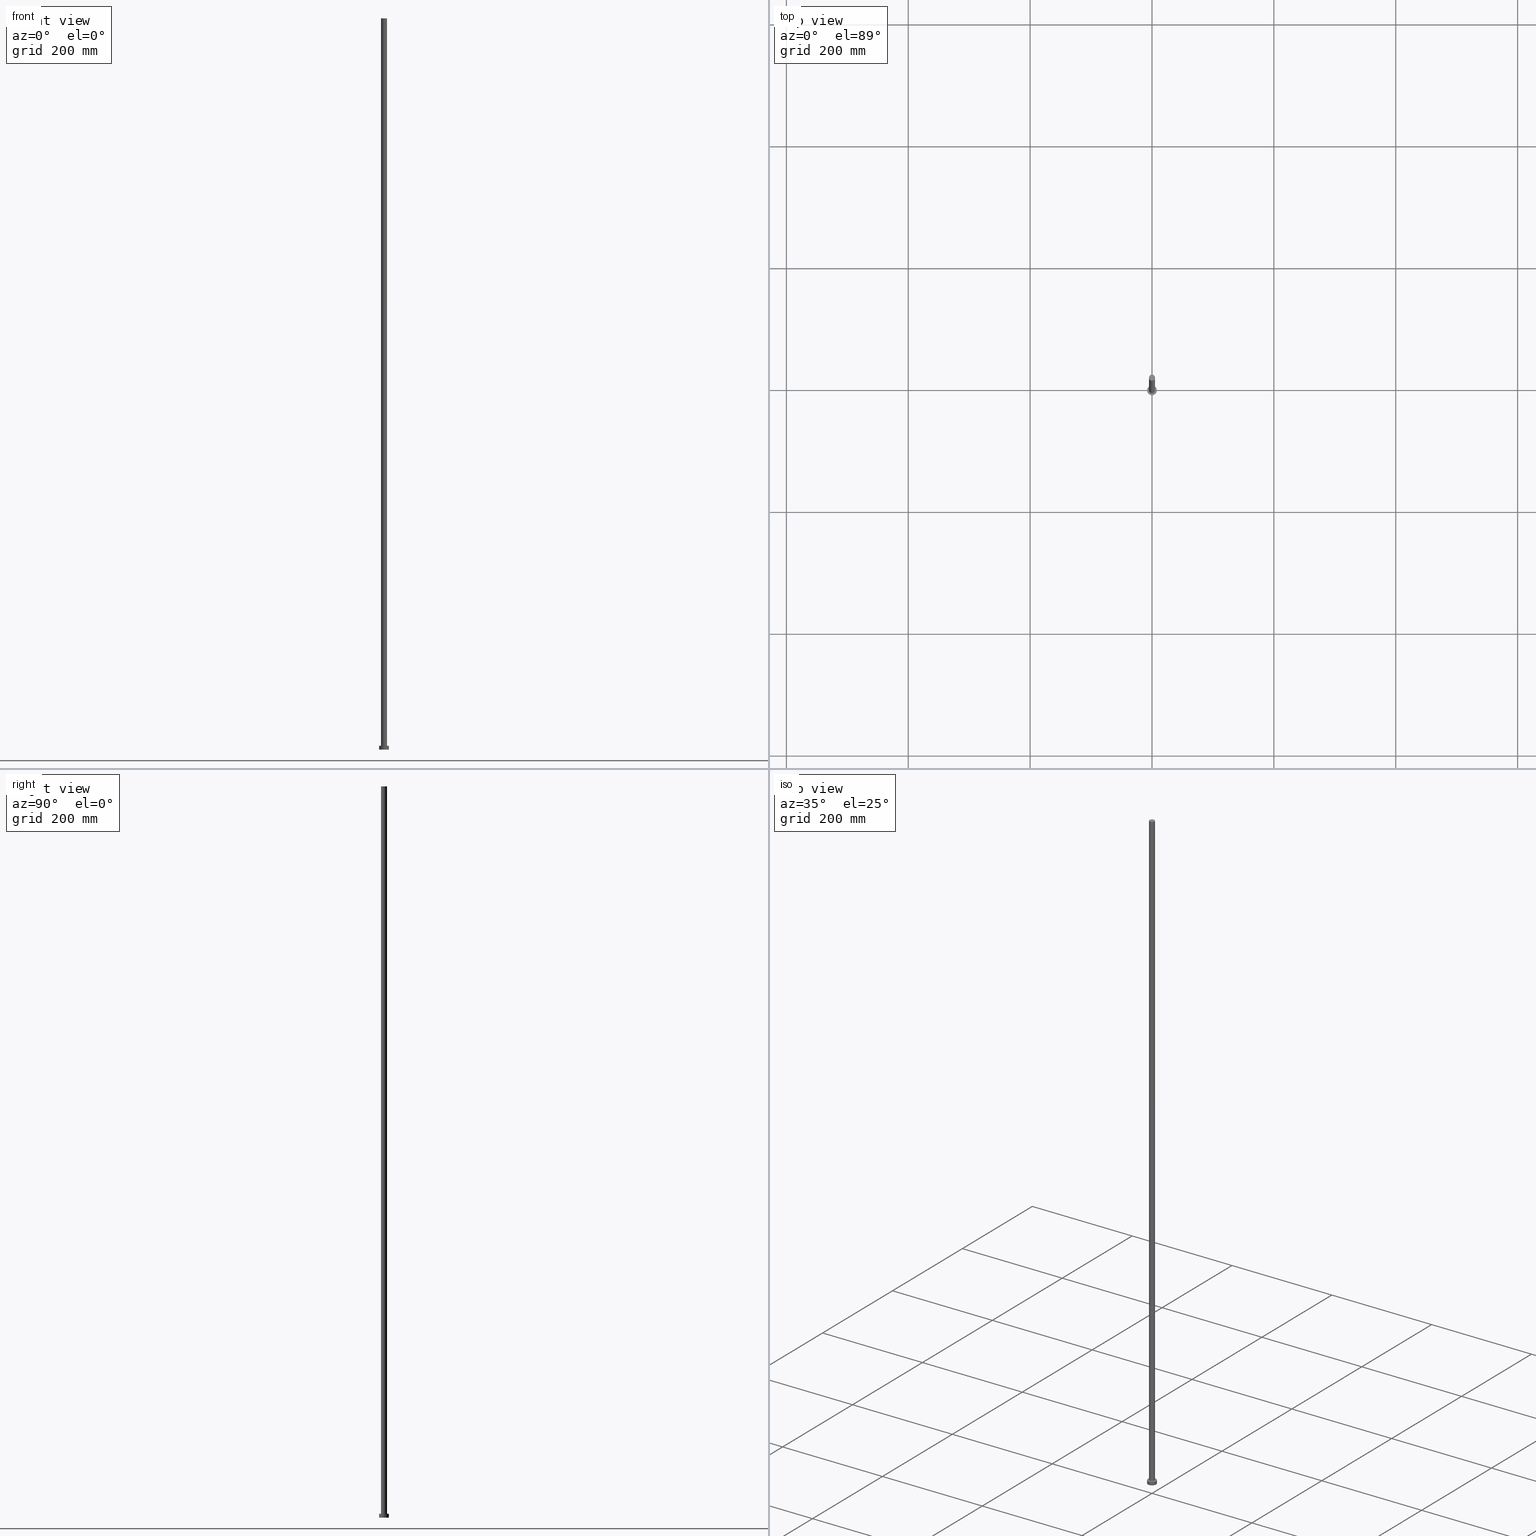
[diagram: canonical four-view strip — front | top / right | iso, engineering-drawing reading convention]
A machine part, canonical four-view strip (front | top / right | iso — engineering-drawing reading convention). The complete STEP part file that produces these views, byte-faithful:
ISO-10303-21;
HEADER;
FILE_DESCRIPTION (( 'STEP AP203' ),
    '1' );
FILE_NAME ('beea.STEP',
    '2023-02-13T13:08:01',
    ( '' ),
    ( '' ),
    'SwSTEP 2.0',
    'SolidWorks 2019',
    '' );
FILE_SCHEMA (( 'CONFIG_CONTROL_DESIGN' ));
ENDSEC;

DATA;
#1 = DIRECTION ( 'NONE',  ( 0.000000000000000000, 0.000000000000000000, 1.000000000000000000 ) ) ;
#2 = DIRECTION ( 'NONE',  ( 1.000000000000000000, 0.000000000000000000, 0.000000000000000000 ) ) ;
#3 = CARTESIAN_POINT ( 'NONE',  ( 0.000000000000000000, 0.000000000000000000, 1200.000000000000000 ) ) ;
#4 = CC_DESIGN_PERSON_AND_ORGANIZATION_ASSIGNMENT ( #246, #33, ( #229 ) ) ;
#5 = AXIS2_PLACEMENT_3D ( 'NONE', #235, #1, #142 ) ;
#6 = CARTESIAN_POINT ( 'NONE',  ( 0.000000000000000000, 0.000000000000000000, 6.500000000000000000 ) ) ;
#7 = CC_DESIGN_DATE_AND_TIME_ASSIGNMENT ( #19, #201, ( #149 ) ) ;
#8 = ADVANCED_BREP_SHAPE_REPRESENTATION ( 'beea', ( #44, #73 ), #86 ) ;
#9 = ORIENTED_EDGE ( 'NONE', *, *, #11, .T. ) ;
#10 = SECURITY_CLASSIFICATION ( '', '', #55 ) ;
#11 = EDGE_CURVE ( 'NONE', #115, #253, #250, .T. ) ;
#12 = ORIENTED_EDGE ( 'NONE', *, *, #223, .F. ) ;
#13 = AXIS2_PLACEMENT_3D ( 'NONE', #217, #254, #2 ) ;
#14 = PERSON_AND_ORGANIZATION ( #135, #141 ) ;
#15 = ORIENTED_EDGE ( 'NONE', *, *, #159, .T. ) ;
#16 = ORIENTED_EDGE ( 'NONE', *, *, #143, .T. ) ;
#17 = PRODUCT ( 'beea', 'beea', '', ( #196 ) ) ;
#18 = EDGE_LOOP ( 'NONE', ( #161, #207 ) ) ;
#19 = DATE_AND_TIME ( #100, #125 ) ;
#20 = PRODUCT_DEFINITION_SHAPE ( 'NONE', 'NONE',  #149 ) ;
#21 = DIRECTION ( 'NONE',  ( -0.000000000000000000, -0.000000000000000000, -1.000000000000000000 ) ) ;
#22 = DIRECTION ( 'NONE',  ( 1.000000000000000000, 0.000000000000000000, -0.000000000000000000 ) ) ;
#23 = CARTESIAN_POINT ( 'NONE',  ( 0.000000000000000000, 0.000000000000000000, 1200.000000000000000 ) ) ;
#24 = LINE ( 'NONE', #101, #191 ) ;
#25 = CYLINDRICAL_SURFACE ( 'NONE', #199, 5.000000000000000888 ) ;
#26 = AXIS2_PLACEMENT_3D ( 'NONE', #6, #178, #160 ) ;
#27 = CARTESIAN_POINT ( 'NONE',  ( 0.000000000000000000, 0.000000000000000000, 0.000000000000000000 ) ) ;
#28 = PERSON_AND_ORGANIZATION ( #135, #141 ) ;
#29 = PERSON_AND_ORGANIZATION_ROLE ( 'design_owner' ) ;
#30 = ADVANCED_FACE ( 'NONE', ( #134 ), #37, .T. ) ;
#31 = CC_DESIGN_APPROVAL ( #80, ( #229 ) ) ;
#32 = APPROVAL_STATUS ( 'not_yet_approved' ) ;
#33 = PERSON_AND_ORGANIZATION_ROLE ( 'design_supplier' ) ;
#34 = EDGE_LOOP ( 'NONE', ( #200, #163, #186, #202 ) ) ;
#35 = VERTEX_POINT ( 'NONE', #234 ) ;
#36 = ORIENTED_EDGE ( 'NONE', *, *, #11, .F. ) ;
#37 = PLANE ( 'NONE',  #167 ) ;
#38 = APPROVAL_ROLE ( '' ) ;
#39 = CARTESIAN_POINT ( 'NONE',  ( -5.000000000000000888, 0.000000000000000000, 1200.000000000000000 ) ) ;
#40 = AXIS2_PLACEMENT_3D ( 'NONE', #96, #209, #59 ) ;
#41 = DIRECTION ( 'NONE',  ( -1.000000000000000000, 0.000000000000000000, 0.000000000000000000 ) ) ;
#42 = DIRECTION ( 'NONE',  ( 1.000000000000000000, 0.000000000000000000, 0.000000000000000000 ) ) ;
#43 = CARTESIAN_POINT ( 'NONE',  ( 5.000000000000000888, 6.123233995736767268E-16, 6.500000000000000000 ) ) ;
#44 = MANIFOLD_SOLID_BREP ( 'P�idat vysunut�m3', #241 ) ;
#45 = CARTESIAN_POINT ( 'NONE',  ( -5.000000000000000888, 0.000000000000000000, 1200.000000000000000 ) ) ;
#46 =( NAMED_UNIT ( * ) SI_UNIT ( $, .STERADIAN. ) SOLID_ANGLE_UNIT ( ) );
#47 = LOCAL_TIME ( 14, 8, 1.000000000000000000, #252 ) ;
#48 = AXIS2_PLACEMENT_3D ( 'NONE', #105, #77, #41 ) ;
#49 = EDGE_CURVE ( 'NONE', #113, #116, #78, .T. ) ;
#50 = COORDINATED_UNIVERSAL_TIME_OFFSET ( 1, 0, .AHEAD. ) ;
#51 = DATE_AND_TIME ( #111, #90 ) ;
#52 = VERTEX_POINT ( 'NONE', #39 ) ;
#53 = VECTOR ( 'NONE', #237, 1000.000000000000000 ) ;
#54 = CC_DESIGN_PERSON_AND_ORGANIZATION_ASSIGNMENT ( #165, #245, ( #149 ) ) ;
#55 = SECURITY_CLASSIFICATION_LEVEL ( 'unclassified' ) ;
#56 = VERTEX_POINT ( 'NONE', #151 ) ;
#57 = PERSON_AND_ORGANIZATION ( #135, #141 ) ;
#58 = ORIENTED_EDGE ( 'NONE', *, *, #49, .T. ) ;
#59 = DIRECTION ( 'NONE',  ( 1.000000000000000000, 0.000000000000000000, 0.000000000000000000 ) ) ;
#60 = APPROVAL_PERSON_ORGANIZATION ( #71, #170, #97 ) ;
#61 = DIRECTION ( 'NONE',  ( -1.000000000000000000, 0.000000000000000000, 0.000000000000000000 ) ) ;
#62 = ADVANCED_FACE ( 'NONE', ( #64 ), #173, .T. ) ;
#63 = CARTESIAN_POINT ( 'NONE',  ( 8.000000000000000000, 9.797174393178823685E-16, 6.500000000000000000 ) ) ;
#64 = FACE_OUTER_BOUND ( 'NONE', #34, .T. ) ;
#65 = APPROVAL ( #131, 'NEUR�EN�' ) ;
#66 = DIRECTION ( 'NONE',  ( -0.000000000000000000, -0.000000000000000000, -1.000000000000000000 ) ) ;
#67 = CIRCLE ( 'NONE', #107, 8.000000000000000000 ) ;
#68 = LINE ( 'NONE', #176, #137 ) ;
#69 =( LENGTH_UNIT ( ) NAMED_UNIT ( * ) SI_UNIT ( .MILLI., .METRE. ) );
#70 = ADVANCED_FACE ( 'NONE', ( #194 ), #25, .T. ) ;
#71 = PERSON_AND_ORGANIZATION ( #135, #141 ) ;
#72 = DATE_AND_TIME ( #162, #218 ) ;
#73 = AXIS2_PLACEMENT_3D ( 'NONE', #27, #243, #127 ) ;
#74 = EDGE_CURVE ( 'NONE', #116, #113, #126, .T. ) ;
#75 = DIRECTION ( 'NONE',  ( 0.000000000000000000, 0.000000000000000000, 1.000000000000000000 ) ) ;
#76 = DIRECTION ( 'NONE',  ( 0.000000000000000000, 0.000000000000000000, 1.000000000000000000 ) ) ;
#77 = DIRECTION ( 'NONE',  ( -0.000000000000000000, -0.000000000000000000, -1.000000000000000000 ) ) ;
#78 = CIRCLE ( 'NONE', #5, 5.000000000000000888 ) ;
#79 = DIRECTION ( 'NONE',  ( 0.000000000000000000, 0.000000000000000000, 1.000000000000000000 ) ) ;
#80 = APPROVAL ( #133, 'NEUR�EN�' ) ;
#81 = FACE_OUTER_BOUND ( 'NONE', #180, .T. ) ;
#82 = AXIS2_PLACEMENT_3D ( 'NONE', #238, #215, #42 ) ;
#83 = CARTESIAN_POINT ( 'NONE',  ( 0.000000000000000000, 0.000000000000000000, 6.500000000000000000 ) ) ;
#84 = APPLICATION_PROTOCOL_DEFINITION ( 'international standard', 'config_control_design', 1994, #220 ) ;
#85 = DIRECTION ( 'NONE',  ( 1.000000000000000000, 0.000000000000000000, 0.000000000000000000 ) ) ;
#86 =( GEOMETRIC_REPRESENTATION_CONTEXT ( 3 ) GLOBAL_UNCERTAINTY_ASSIGNED_CONTEXT ( ( #177 ) ) GLOBAL_UNIT_ASSIGNED_CONTEXT ( ( #69, #175, #46 ) ) REPRESENTATION_CONTEXT ( 'NONE', 'WORKASPACE' ) );
#87 = FACE_BOUND ( 'NONE', #18, .T. ) ;
#88 = APPLICATION_PROTOCOL_DEFINITION ( 'international standard', 'config_control_design', 1994, #216 ) ;
#89 = ORIENTED_EDGE ( 'NONE', *, *, #232, .T. ) ;
#90 = LOCAL_TIME ( 14, 8, 1.000000000000000000, #50 ) ;
#91 = COORDINATED_UNIVERSAL_TIME_OFFSET ( 1, 0, .AHEAD. ) ;
#92 = ORIENTED_EDGE ( 'NONE', *, *, #198, .F. ) ;
#93 = CALENDAR_DATE ( 2023, 13, 2 ) ;
#94 = ORIENTED_EDGE ( 'NONE', *, *, #223, .T. ) ;
#95 = CALENDAR_DATE ( 2023, 13, 2 ) ;
#96 = CARTESIAN_POINT ( 'NONE',  ( 0.000000000000000000, 0.000000000000000000, 0.000000000000000000 ) ) ;
#97 = APPROVAL_ROLE ( '' ) ;
#98 = AXIS2_PLACEMENT_3D ( 'NONE', #140, #190, #61 ) ;
#99 = EDGE_LOOP ( 'NONE', ( #92, #94, #58, #184 ) ) ;
#100 = CALENDAR_DATE ( 2023, 13, 2 ) ;
#101 = CARTESIAN_POINT ( 'NONE',  ( 5.000000000000000888, 6.123233995736767268E-16, 1200.000000000000000 ) ) ;
#102 = FACE_OUTER_BOUND ( 'NONE', #132, .T. ) ;
#103 = CIRCLE ( 'NONE', #82, 8.000000000000000000 ) ;
#104 = EDGE_CURVE ( 'NONE', #56, #115, #189, .T. ) ;
#105 = CARTESIAN_POINT ( 'NONE',  ( 0.000000000000000000, 0.000000000000000000, 6.500000000000000000 ) ) ;
#106 = CYLINDRICAL_SURFACE ( 'NONE', #244, 5.000000000000000888 ) ;
#107 = AXIS2_PLACEMENT_3D ( 'NONE', #83, #79, #139 ) ;
#108 = ADVANCED_FACE ( 'NONE', ( #81 ), #120, .T. ) ;
#109 = CC_DESIGN_APPROVAL ( #65, ( #10 ) ) ;
#110 = ADVANCED_FACE ( 'NONE', ( #102 ), #236, .F. ) ;
#111 = CALENDAR_DATE ( 2023, 13, 2 ) ;
#112 = COORDINATED_UNIVERSAL_TIME_OFFSET ( 1, 0, .AHEAD. ) ;
#113 = VERTEX_POINT ( 'NONE', #43 ) ;
#114 = DATE_AND_TIME ( #95, #148 ) ;
#115 = VERTEX_POINT ( 'NONE', #172 ) ;
#116 = VERTEX_POINT ( 'NONE', #152 ) ;
#117 = AXIS2_PLACEMENT_3D ( 'NONE', #212, #187, #85 ) ;
#118 = CIRCLE ( 'NONE', #224, 5.000000000000000888 ) ;
#119 = DIRECTION ( 'NONE',  ( -0.000000000000000000, -0.000000000000000000, -1.000000000000000000 ) ) ;
#120 = CYLINDRICAL_SURFACE ( 'NONE', #48, 8.000000000000000000 ) ;
#121 = APPROVAL_PERSON_ORGANIZATION ( #57, #80, #38 ) ;
#122 = CC_DESIGN_PERSON_AND_ORGANIZATION_ASSIGNMENT ( #28, #29, ( #17 ) ) ;
#123 = LINE ( 'NONE', #45, #53 ) ;
#124 = FACE_OUTER_BOUND ( 'NONE', #99, .T. ) ;
#125 = LOCAL_TIME ( 14, 8, 1.000000000000000000, #112 ) ;
#126 = CIRCLE ( 'NONE', #13, 5.000000000000000888 ) ;
#127 = DIRECTION ( 'NONE',  ( 1.000000000000000000, 0.000000000000000000, 0.000000000000000000 ) ) ;
#128 = ORIENTED_EDGE ( 'NONE', *, *, #198, .T. ) ;
#129 = CC_DESIGN_PERSON_AND_ORGANIZATION_ASSIGNMENT ( #226, #208, ( #229 ) ) ;
#130 = COORDINATED_UNIVERSAL_TIME_OFFSET ( 1, 0, .AHEAD. ) ;
#131 = APPROVAL_STATUS ( 'not_yet_approved' ) ;
#132 = EDGE_LOOP ( 'NONE', ( #36, #179 ) ) ;
#133 = APPROVAL_STATUS ( 'not_yet_approved' ) ;
#134 = FACE_OUTER_BOUND ( 'NONE', #227, .T. ) ;
#135 = PERSON ( 'NEUR�EN�', 'NEUR�EN�', 'NEUR�EN�', ('NEUR�EN�'), ('NEUR�EN�'), ('NEUR�EN�') ) ;
#136 = DIRECTION ( 'NONE',  ( -1.000000000000000000, 0.000000000000000000, 0.000000000000000000 ) ) ;
#137 = VECTOR ( 'NONE', #239, 1000.000000000000000 ) ;
#138 = DIRECTION ( 'NONE',  ( -1.000000000000000000, 0.000000000000000000, 0.000000000000000000 ) ) ;
#139 = DIRECTION ( 'NONE',  ( 1.000000000000000000, 0.000000000000000000, 0.000000000000000000 ) ) ;
#140 = CARTESIAN_POINT ( 'NONE',  ( 0.000000000000000000, 0.000000000000000000, 6.500000000000000000 ) ) ;
#141 = ORGANIZATION ( 'NEUR�EN�', 'NEUR�EN�', '' ) ;
#142 = DIRECTION ( 'NONE',  ( 1.000000000000000000, 0.000000000000000000, 0.000000000000000000 ) ) ;
#143 = EDGE_CURVE ( 'NONE', #52, #35, #118, .T. ) ;
#144 = ORIENTED_EDGE ( 'NONE', *, *, #74, .T. ) ;
#145 = APPROVAL_ROLE ( '' ) ;
#146 = ORIENTED_EDGE ( 'NONE', *, *, #188, .T. ) ;
#147 = DATE_AND_TIME ( #93, #47 ) ;
#148 = LOCAL_TIME ( 14, 8, 1.000000000000000000, #91 ) ;
#149 = PRODUCT_DEFINITION ( 'NEZN�M�', '', #229, #181 ) ;
#150 = VERTEX_POINT ( 'NONE', #63 ) ;
#151 = CARTESIAN_POINT ( 'NONE',  ( -8.000000000000000000, 0.000000000000000000, 6.500000000000000000 ) ) ;
#152 = CARTESIAN_POINT ( 'NONE',  ( -5.000000000000000888, 0.000000000000000000, 6.500000000000000000 ) ) ;
#153 = DIRECTION ( 'NONE',  ( 0.000000000000000000, 0.000000000000000000, 1.000000000000000000 ) ) ;
#154 = CARTESIAN_POINT ( 'NONE',  ( 0.000000000000000000, 0.000000000000000000, 1200.000000000000000 ) ) ;
#155 = CIRCLE ( 'NONE', #117, 8.000000000000000000 ) ;
#156 = PRODUCT_RELATED_PRODUCT_CATEGORY ( 'detail', '', ( #17 ) ) ;
#157 = DIRECTION ( 'NONE',  ( -0.000000000000000000, -0.000000000000000000, -1.000000000000000000 ) ) ;
#158 = PLANE ( 'NONE',  #26 ) ;
#159 = EDGE_CURVE ( 'NONE', #56, #150, #67, .T. ) ;
#160 = DIRECTION ( 'NONE',  ( 1.000000000000000000, 0.000000000000000000, -0.000000000000000000 ) ) ;
#161 = ORIENTED_EDGE ( 'NONE', *, *, #74, .F. ) ;
#162 = CALENDAR_DATE ( 2023, 13, 2 ) ;
#163 = ORIENTED_EDGE ( 'NONE', *, *, #242, .T. ) ;
#164 = EDGE_CURVE ( 'NONE', #253, #115, #103, .T. ) ;
#165 = PERSON_AND_ORGANIZATION ( #135, #141 ) ;
#166 = ORIENTED_EDGE ( 'NONE', *, *, #143, .F. ) ;
#167 = AXIS2_PLACEMENT_3D ( 'NONE', #168, #75, #22 ) ;
#168 = CARTESIAN_POINT ( 'NONE',  ( 0.000000000000000000, 0.000000000000000000, 1200.000000000000000 ) ) ;
#169 = DIRECTION ( 'NONE',  ( 1.000000000000000000, 0.000000000000000000, -0.000000000000000000 ) ) ;
#170 = APPROVAL ( #32, 'NEUR�EN�' ) ;
#171 = CARTESIAN_POINT ( 'NONE',  ( 0.000000000000000000, 0.000000000000000000, 0.000000000000000000 ) ) ;
#172 = CARTESIAN_POINT ( 'NONE',  ( -8.000000000000000000, 0.000000000000000000, 0.000000000000000000 ) ) ;
#173 = CYLINDRICAL_SURFACE ( 'NONE', #98, 8.000000000000000000 ) ;
#174 = CARTESIAN_POINT ( 'NONE',  ( 0.000000000000000000, 0.000000000000000000, 1200.000000000000000 ) ) ;
#175 =( NAMED_UNIT ( * ) PLANE_ANGLE_UNIT ( ) SI_UNIT ( $, .RADIAN. ) );
#176 = CARTESIAN_POINT ( 'NONE',  ( 8.000000000000000000, 9.797174393178823685E-16, 6.500000000000000000 ) ) ;
#177 = UNCERTAINTY_MEASURE_WITH_UNIT (LENGTH_MEASURE( 1.000000000000000082E-05 ), #69, 'distance_accuracy_value', 'NONE');
#178 = DIRECTION ( 'NONE',  ( 0.000000000000000000, 0.000000000000000000, 1.000000000000000000 ) ) ;
#179 = ORIENTED_EDGE ( 'NONE', *, *, #164, .F. ) ;
#180 = EDGE_LOOP ( 'NONE', ( #231, #225, #249, #9 ) ) ;
#181 = DESIGN_CONTEXT ( 'detailed design', #216, 'design' ) ;
#182 = AXIS2_PLACEMENT_3D ( 'NONE', #171, #214, #169 ) ;
#183 = PERSON_AND_ORGANIZATION_ROLE ( 'classification_officer' ) ;
#184 = ORIENTED_EDGE ( 'NONE', *, *, #188, .F. ) ;
#185 = SHAPE_DEFINITION_REPRESENTATION ( #20, #8 ) ;
#186 = ORIENTED_EDGE ( 'NONE', *, *, #164, .T. ) ;
#187 = DIRECTION ( 'NONE',  ( 0.000000000000000000, 0.000000000000000000, 1.000000000000000000 ) ) ;
#188 = EDGE_CURVE ( 'NONE', #52, #116, #123, .T. ) ;
#189 = LINE ( 'NONE', #255, #213 ) ;
#190 = DIRECTION ( 'NONE',  ( -0.000000000000000000, -0.000000000000000000, -1.000000000000000000 ) ) ;
#191 = VECTOR ( 'NONE', #66, 1000.000000000000000 ) ;
#192 = CC_DESIGN_DATE_AND_TIME_ASSIGNMENT ( #147, #247, ( #10 ) ) ;
#193 = DIRECTION ( 'NONE',  ( 1.000000000000000000, 0.000000000000000000, 0.000000000000000000 ) ) ;
#194 = FACE_OUTER_BOUND ( 'NONE', #233, .T. ) ;
#195 = CC_DESIGN_APPROVAL ( #170, ( #149 ) ) ;
#196 = MECHANICAL_CONTEXT ( 'NONE', #220, 'mechanical' ) ;
#197 = AXIS2_PLACEMENT_3D ( 'NONE', #23, #153, #193 ) ;
#198 = EDGE_CURVE ( 'NONE', #35, #52, #222, .T. ) ;
#199 = AXIS2_PLACEMENT_3D ( 'NONE', #174, #21, #138 ) ;
#200 = ORIENTED_EDGE ( 'NONE', *, *, #232, .F. ) ;
#201 = DATE_TIME_ROLE ( 'creation_date' ) ;
#202 = ORIENTED_EDGE ( 'NONE', *, *, #104, .F. ) ;
#203 = APPROVAL_DATE_TIME ( #51, #65 ) ;
#204 = EDGE_LOOP ( 'NONE', ( #15, #89 ) ) ;
#205 = PERSON_AND_ORGANIZATION ( #135, #141 ) ;
#206 = CC_DESIGN_PERSON_AND_ORGANIZATION_ASSIGNMENT ( #14, #183, ( #10 ) ) ;
#207 = ORIENTED_EDGE ( 'NONE', *, *, #49, .F. ) ;
#208 = PERSON_AND_ORGANIZATION_ROLE ( 'creator' ) ;
#209 = DIRECTION ( 'NONE',  ( 0.000000000000000000, 0.000000000000000000, 1.000000000000000000 ) ) ;
#210 = APPROVAL_DATE_TIME ( #72, #170 ) ;
#211 = APPROVAL_PERSON_ORGANIZATION ( #205, #65, #145 ) ;
#212 = CARTESIAN_POINT ( 'NONE',  ( 0.000000000000000000, 0.000000000000000000, 6.500000000000000000 ) ) ;
#213 = VECTOR ( 'NONE', #119, 1000.000000000000000 ) ;
#214 = DIRECTION ( 'NONE',  ( 0.000000000000000000, 0.000000000000000000, 1.000000000000000000 ) ) ;
#215 = DIRECTION ( 'NONE',  ( 0.000000000000000000, 0.000000000000000000, 1.000000000000000000 ) ) ;
#216 = APPLICATION_CONTEXT ( 'configuration controlled 3d designs of mechanical parts and assemblies' ) ;
#217 = CARTESIAN_POINT ( 'NONE',  ( 0.000000000000000000, 0.000000000000000000, 6.500000000000000000 ) ) ;
#218 = LOCAL_TIME ( 14, 8, 1.000000000000000000, #130 ) ;
#219 = DIRECTION ( 'NONE',  ( 1.000000000000000000, 0.000000000000000000, 0.000000000000000000 ) ) ;
#220 = APPLICATION_CONTEXT ( 'configuration controlled 3d designs of mechanical parts and assemblies' ) ;
#221 = FACE_OUTER_BOUND ( 'NONE', #204, .T. ) ;
#222 = CIRCLE ( 'NONE', #197, 5.000000000000000888 ) ;
#223 = EDGE_CURVE ( 'NONE', #35, #113, #24, .T. ) ;
#224 = AXIS2_PLACEMENT_3D ( 'NONE', #154, #76, #219 ) ;
#225 = ORIENTED_EDGE ( 'NONE', *, *, #159, .F. ) ;
#226 = PERSON_AND_ORGANIZATION ( #135, #141 ) ;
#227 = EDGE_LOOP ( 'NONE', ( #16, #128 ) ) ;
#228 = ADVANCED_FACE ( 'NONE', ( #124 ), #106, .T. ) ;
#229 = PRODUCT_DEFINITION_FORMATION_WITH_SPECIFIED_SOURCE ( 'LIBOVOLN�', '', #17, .NOT_KNOWN. ) ;
#230 = APPROVAL_DATE_TIME ( #114, #80 ) ;
#231 = ORIENTED_EDGE ( 'NONE', *, *, #242, .F. ) ;
#232 = EDGE_CURVE ( 'NONE', #150, #56, #155, .T. ) ;
#233 = EDGE_LOOP ( 'NONE', ( #12, #166, #146, #144 ) ) ;
#234 = CARTESIAN_POINT ( 'NONE',  ( 5.000000000000000888, 6.123233995736767268E-16, 1200.000000000000000 ) ) ;
#235 = CARTESIAN_POINT ( 'NONE',  ( 0.000000000000000000, 0.000000000000000000, 6.500000000000000000 ) ) ;
#236 = PLANE ( 'NONE',  #182 ) ;
#237 = DIRECTION ( 'NONE',  ( -0.000000000000000000, -0.000000000000000000, -1.000000000000000000 ) ) ;
#238 = CARTESIAN_POINT ( 'NONE',  ( 0.000000000000000000, 0.000000000000000000, 0.000000000000000000 ) ) ;
#239 = DIRECTION ( 'NONE',  ( -0.000000000000000000, -0.000000000000000000, -1.000000000000000000 ) ) ;
#240 = CARTESIAN_POINT ( 'NONE',  ( 8.000000000000000000, 9.797174393178823685E-16, 0.000000000000000000 ) ) ;
#241 = CLOSED_SHELL ( 'NONE', ( #228, #62, #108, #251, #110, #70, #30 ) ) ;
#242 = EDGE_CURVE ( 'NONE', #150, #253, #68, .T. ) ;
#243 = DIRECTION ( 'NONE',  ( 0.000000000000000000, 0.000000000000000000, 1.000000000000000000 ) ) ;
#244 = AXIS2_PLACEMENT_3D ( 'NONE', #3, #157, #136 ) ;
#245 = PERSON_AND_ORGANIZATION_ROLE ( 'creator' ) ;
#246 = PERSON_AND_ORGANIZATION ( #135, #141 ) ;
#247 = DATE_TIME_ROLE ( 'classification_date' ) ;
#248 = CC_DESIGN_SECURITY_CLASSIFICATION ( #10, ( #229 ) ) ;
#249 = ORIENTED_EDGE ( 'NONE', *, *, #104, .T. ) ;
#250 = CIRCLE ( 'NONE', #40, 8.000000000000000000 ) ;
#251 = ADVANCED_FACE ( 'NONE', ( #87, #221 ), #158, .T. ) ;
#252 = COORDINATED_UNIVERSAL_TIME_OFFSET ( 1, 0, .AHEAD. ) ;
#253 = VERTEX_POINT ( 'NONE', #240 ) ;
#254 = DIRECTION ( 'NONE',  ( 0.000000000000000000, 0.000000000000000000, 1.000000000000000000 ) ) ;
#255 = CARTESIAN_POINT ( 'NONE',  ( -8.000000000000000000, 0.000000000000000000, 6.500000000000000000 ) ) ;
ENDSEC;
END-ISO-10303-21;
